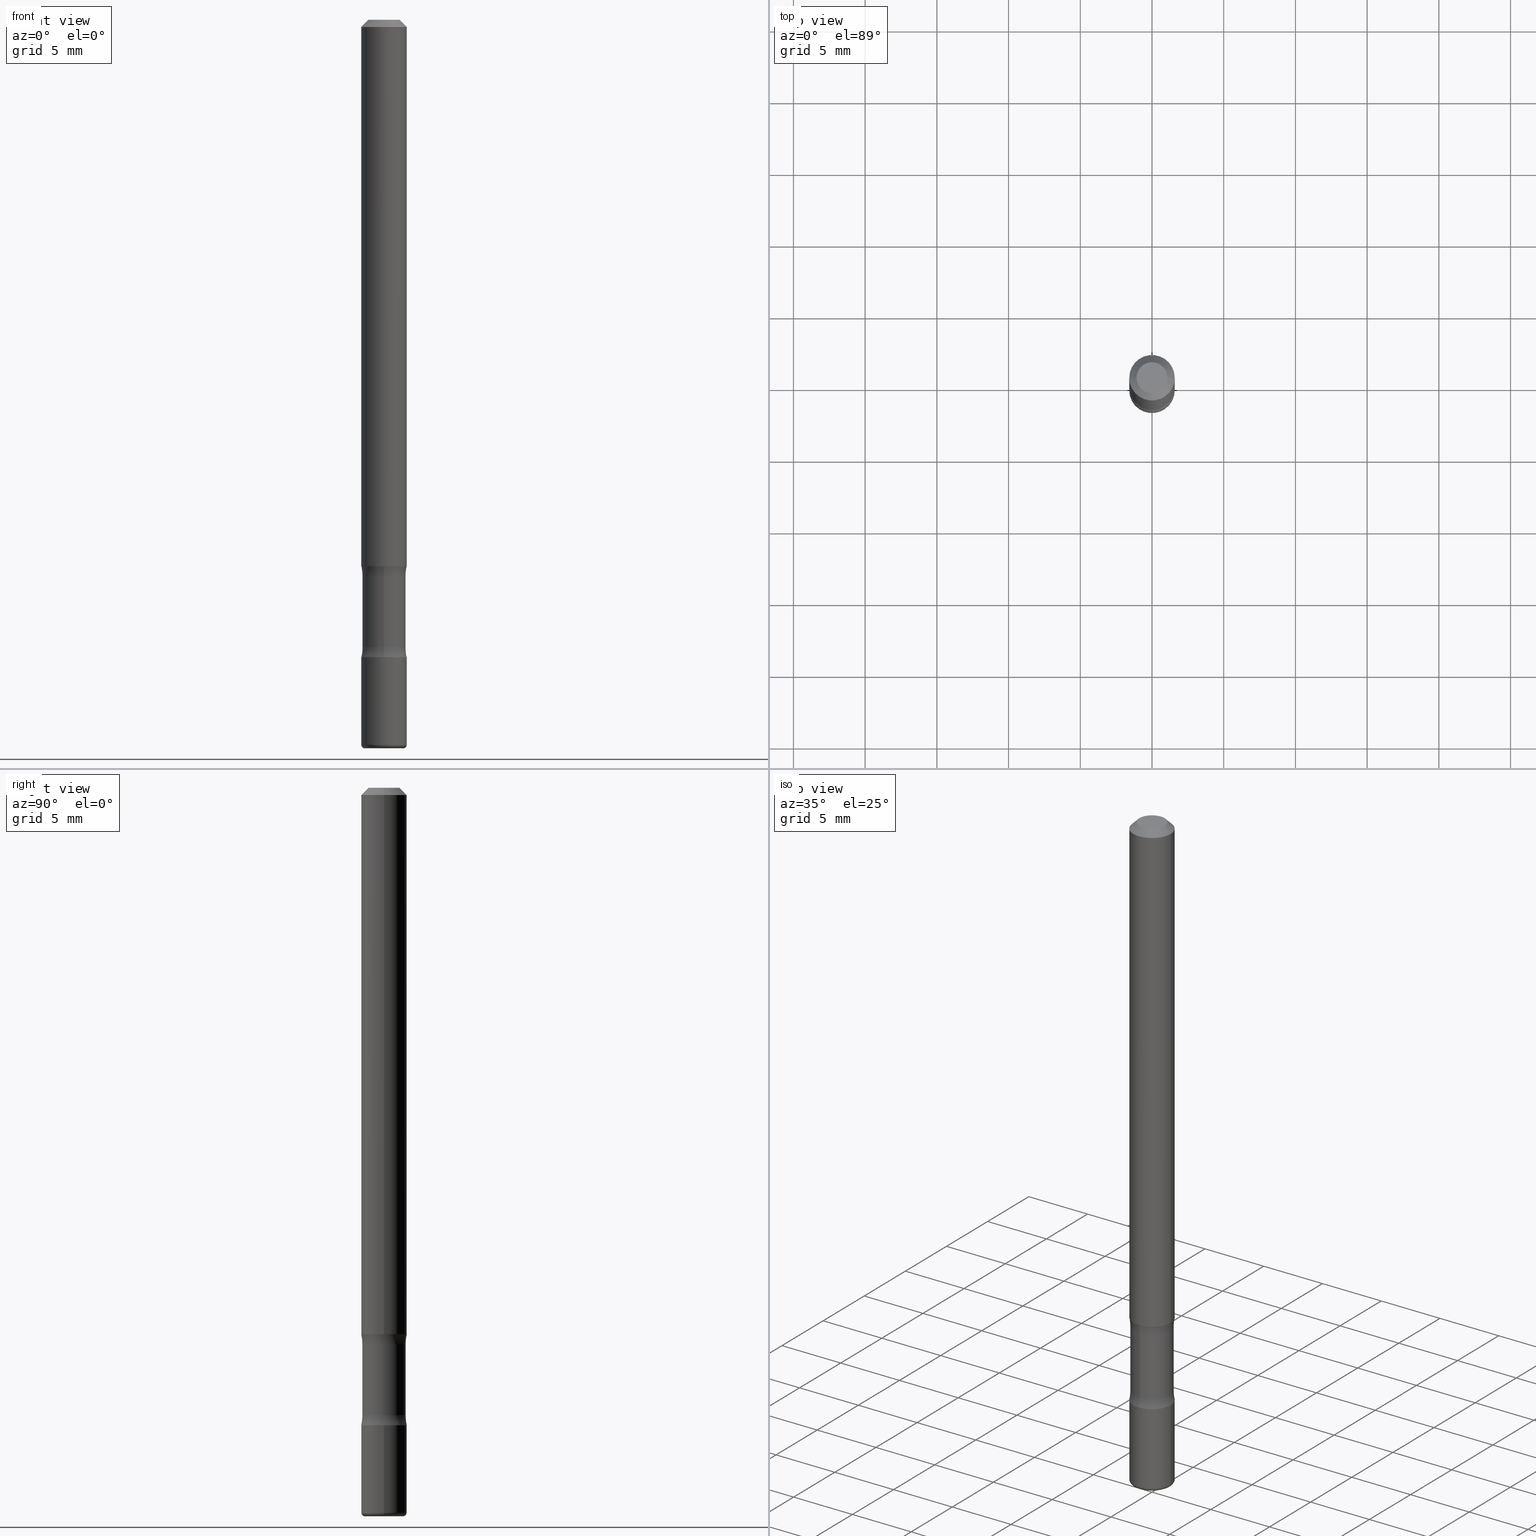
[diagram: canonical four-view strip — front | top / right | iso, engineering-drawing reading convention]
A machine part, canonical four-view strip (front | top / right | iso — engineering-drawing reading convention). The complete STEP part file that produces these views, byte-faithful:
ISO-10303-21;
HEADER;
FILE_DESCRIPTION (( 'STEP AP203' ),
    '1' );
FILE_NAME ('37992.STEP',
    '2024-03-02T02:10:36',
    ( '' ),
    ( '' ),
    'SwSTEP 2.0',
    'SolidWorks 2023',
    '' );
FILE_SCHEMA (( 'CONFIG_CONTROL_DESIGN' ));
ENDSEC;

DATA;
#1 = CIRCLE ( 'NONE', #109, 0.1250000000000000000 ) ;
#2 = AXIS2_PLACEMENT_3D ( 'NONE', #503, #286, #391 ) ;
#3 = ORIENTED_EDGE ( 'NONE', *, *, #207, .F. ) ;
#4 = ORIENTED_EDGE ( 'NONE', *, *, #240, .T. ) ;
#5 = LINE ( 'NONE', #318, #350 ) ;
#6 = DIRECTION ( 'NONE',  ( 0.7071067811865471286, -7.319954787623254468E-15, -0.7071067811865479058 ) ) ;
#7 = CARTESIAN_POINT ( 'NONE',  ( 4.279570410823986242E-29, -6.110092342975502304E-15, -1.749999999999999112 ) ) ;
#8 = AXIS2_PLACEMENT_3D ( 'NONE', #12, #394, #234 ) ;
#9 = AXIS2_PLACEMENT_3D ( 'NONE', #404, #491, #235 ) ;
#10 = ORIENTED_EDGE ( 'NONE', *, *, #79, .T. ) ;
#11 = EDGE_LOOP ( 'NONE', ( #555, #335, #31, #281 ) ) ;
#12 = CARTESIAN_POINT ( 'NONE',  ( -6.403209434462905426E-29, -2.140844110749520751E-14, -1.749999999999998890 ) ) ;
#13 = EDGE_CURVE ( 'NONE', #424, #320, #387, .T. ) ;
#14 = APPROVAL_STATUS ( 'not_yet_approved' ) ;
#15 = AXIS2_PLACEMENT_3D ( 'NONE', #510, #36, #159 ) ;
#16 = EDGE_LOOP ( 'NONE', ( #504, #509, #100, #167 ) ) ;
#17 = EDGE_LOOP ( 'NONE', ( #380, #221, #458, #182 ) ) ;
#18 = APPROVAL_ROLE ( '' ) ;
#19 = ORIENTED_EDGE ( 'NONE', *, *, #431, .T. ) ;
#20 = ORIENTED_EDGE ( 'NONE', *, *, #463, .T. ) ;
#21 = DIRECTION ( 'NONE',  ( 6.982962677686267499E-15, 1.000000000000000000, -4.370956789862777762E-15 ) ) ;
#22 = ORIENTED_EDGE ( 'NONE', *, *, #473, .T. ) ;
#23 = CYLINDRICAL_SURFACE ( 'NONE', #254, 0.05937499999999967110 ) ;
#24 = VERTEX_POINT ( 'NONE', #374 ) ;
#25 = DIRECTION ( 'NONE',  ( 6.982962677686265922E-15, 1.000000000000000000, -5.846345719468729014E-15 ) ) ;
#26 = CIRCLE ( 'NONE', #239, 0.06250000000000056899 ) ;
#27 = ADVANCED_FACE ( 'NONE', ( #287 ), #135, .F. ) ;
#28 = LOCAL_TIME ( 21, 10, 36.00000000000000000, #329 ) ;
#29 = CIRCLE ( 'NONE', #353, 0.04250000000000050265 ) ;
#30 = DIRECTION ( 'NONE',  ( 1.000000000000000000, 0.000000000000000000, 0.000000000000000000 ) ) ;
#31 = ORIENTED_EDGE ( 'NONE', *, *, #294, .T. ) ;
#32 = DIRECTION ( 'NONE',  ( 1.000000000000000000, -6.982962677686265922E-15, 4.876176775795935793E-29 ) ) ;
#33 = VERTEX_POINT ( 'NONE', #154 ) ;
#34 = ADVANCED_FACE ( 'NONE', ( #416 ), #419, .F. ) ;
#35 = PERSON_AND_ORGANIZATION_ROLE ( 'design_owner' ) ;
#36 = DIRECTION ( 'NONE',  ( -2.445468806185136597E-29, 3.491481338843145583E-15, 1.000000000000000000 ) ) ;
#37 = AXIS2_PLACEMENT_3D ( 'NONE', #117, #529, #533 ) ;
#38 = CC_DESIGN_PERSON_AND_ORGANIZATION_ASSIGNMENT ( #312, #545, ( #60 ) ) ;
#39 = AXIS2_PLACEMENT_3D ( 'NONE', #256, #482, #57 ) ;
#40 = VERTEX_POINT ( 'NONE', #116 ) ;
#41 = DIRECTION ( 'NONE',  ( -2.445468806185136597E-29, 3.491481338843145583E-15, 1.000000000000000000 ) ) ;
#42 = CARTESIAN_POINT ( 'NONE',  ( 3.668203209277701532E-29, -5.237222008264713444E-15, -1.499999999999998668 ) ) ;
#43 = APPLICATION_PROTOCOL_DEFINITION ( 'international standard', 'config_control_design', 1994, #131 ) ;
#44 = DIRECTION ( 'NONE',  ( 1.000000000000000000, -6.982962677686266711E-15, 4.870577812114026993E-29 ) ) ;
#45 = EDGE_CURVE ( 'NONE', #444, #216, #29, .T. ) ;
#46 = APPROVAL_DATE_TIME ( #469, #104 ) ;
#47 = DIRECTION ( 'NONE',  ( 1.000000000000000000, -6.982962677686270655E-15, 0.000000000000000000 ) ) ;
#48 = CIRCLE ( 'NONE', #543, 0.01000000000000085022 ) ;
#49 = CIRCLE ( 'NONE', #421, 0.06250000000000062450 ) ;
#50 = PERSON_AND_ORGANIZATION_ROLE ( 'classification_officer' ) ;
#51 = SECURITY_CLASSIFICATION_LEVEL ( 'unclassified' ) ;
#52 = DIRECTION ( 'NONE',  ( -2.445468806185136597E-29, 3.491481338843145583E-15, 1.000000000000000000 ) ) ;
#53 = CARTESIAN_POINT ( 'NONE',  ( -0.04250000000000050265, 3.316907271901009129E-16, -5.549066237130754373E-17 ) ) ;
#54 = FACE_OUTER_BOUND ( 'NONE', #17, .T. ) ;
#55 = DIRECTION ( 'NONE',  ( -2.445468806185136597E-29, 3.491481338843145583E-15, 1.000000000000000000 ) ) ;
#56 = AXIS2_PLACEMENT_3D ( 'NONE', #525, #479, #32 ) ;
#57 = DIRECTION ( 'NONE',  ( -1.000000000000000000, 6.982962677686265922E-15, 0.000000000000000000 ) ) ;
#58 = EDGE_LOOP ( 'NONE', ( #454, #243 ) ) ;
#59 = LINE ( 'NONE', #269, #149 ) ;
#60 = PRODUCT_DEFINITION ( 'UNKNOWN', '', #187, #214 ) ;
#61 = EDGE_LOOP ( 'NONE', ( #233, #342 ) ) ;
#62 = CLOSED_SHELL ( 'NONE', ( #197, #27, #258, #282, #34, #152, #176, #551 ) ) ;
#63 = CIRCLE ( 'NONE', #447, 0.06249999999999997224 ) ;
#64 = APPROVAL_PERSON_ORGANIZATION ( #224, #104, #83 ) ;
#65 = ORIENTED_EDGE ( 'NONE', *, *, #165, .F. ) ;
#66 = EDGE_CURVE ( 'NONE', #418, #95, #99, .T. ) ;
#67 = DIRECTION ( 'NONE',  ( 8.010757980930134339E-30, -5.846345719468729014E-15, -1.000000000000000000 ) ) ;
#68 = FACE_OUTER_BOUND ( 'NONE', #384, .T. ) ;
#69 = DIRECTION ( 'NONE',  ( 6.982962677686266711E-15, 1.000000000000000000, -4.601007147224070964E-15 ) ) ;
#70 = CYLINDRICAL_SURFACE ( 'NONE', #409, 0.06250000000000076328 ) ;
#71 = DIRECTION ( 'NONE',  ( -2.445468806185136597E-29, 3.491481338843145583E-15, 1.000000000000000000 ) ) ;
#72 = ORIENTED_EDGE ( 'NONE', *, *, #45, .F. ) ;
#73 = COORDINATED_UNIVERSAL_TIME_OFFSET ( 5, 0, .BEHIND. ) ;
#74 = CIRCLE ( 'NONE', #37, 0.06250000000000090206 ) ;
#75 = EDGE_LOOP ( 'NONE', ( #480, #198, #558, #489 ) ) ;
#76 = PERSON_AND_ORGANIZATION_ROLE ( 'creator' ) ;
#77 = CARTESIAN_POINT ( 'NONE',  ( -0.06250000000000056899, 3.666055405785322169E-16, -0.02000000000000013572 ) ) ;
#78 = CARTESIAN_POINT ( 'NONE',  ( 4.479839360347238409E-29, -7.571678772842681008E-15, -1.999999999999998446 ) ) ;
#79 = EDGE_CURVE ( 'NONE', #444, #195, #212, .T. ) ;
#80 = ORIENTED_EDGE ( 'NONE', *, *, #433, .T. ) ;
#81 = AXIS2_PLACEMENT_3D ( 'NONE', #7, #508, #308 ) ;
#82 = APPROVAL_PERSON_ORGANIZATION ( #385, #518, #344 ) ;
#83 = APPROVAL_ROLE ( '' ) ;
#84 = PERSON_AND_ORGANIZATION ( #211, #173 ) ;
#85 = CARTESIAN_POINT ( 'NONE',  ( 1.287483743698447629E-15, 0.1843749999999939881, -1.722224392445885766 ) ) ;
#86 = DIRECTION ( 'NONE',  ( 8.010757980930134339E-30, -5.846345719468729014E-15, -1.000000000000000000 ) ) ;
#87 = AXIS2_PLACEMENT_3D ( 'NONE', #398, #522, #222 ) ;
#88 = CC_DESIGN_SECURITY_CLASSIFICATION ( #484, ( #187 ) ) ;
#89 = DIRECTION ( 'NONE',  ( 7.105427357601001859E-15, 1.000000000000000000, -3.491481338843145583E-15 ) ) ;
#90 = CARTESIAN_POINT ( 'NONE',  ( -0.06250000000000073552, 4.440892098500678424E-16, -3.074334431409351847E-30 ) ) ;
#91 = CARTESIAN_POINT ( 'NONE',  ( -0.06250000000000056899, 3.666055405785322169E-16, -0.02000000000000013572 ) ) ;
#92 = PERSON_AND_ORGANIZATION_ROLE ( 'design_supplier' ) ;
#93 = CARTESIAN_POINT ( 'NONE',  ( 4.101551828289662394E-29, -4.810891717437951800E-15, -1.527775607554112014 ) ) ;
#94 = DIMENSIONAL_EXPONENTS ( 1.000000000000000000, 0.000000000000000000, 0.000000000000000000, 0.000000000000000000, 0.000000000000000000, 0.000000000000000000, 0.000000000000000000 ) ;
#95 = VERTEX_POINT ( 'NONE', #217 ) ;
#96 = TOROIDAL_SURFACE ( 'NONE', #506, 0.05250000000000046296, 0.01000000000000085022 ) ;
#97 = AXIS2_PLACEMENT_3D ( 'NONE', #450, #188, #280 ) ;
#98 = DIRECTION ( 'NONE',  ( 8.010757980930134339E-30, -5.846345719468729014E-15, -1.000000000000000000 ) ) ;
#99 = CIRCLE ( 'NONE', #422, 0.06250000000000062450 ) ;
#100 = ORIENTED_EDGE ( 'NONE', *, *, #210, .F. ) ;
#101 = ADVANCED_FACE ( 'NONE', ( #54 ), #174, .T. ) ;
#102 = EDGE_CURVE ( 'NONE', #195, #323, #399, .T. ) ;
#103 = DIRECTION ( 'NONE',  ( 2.438088387897960049E-29, -3.491481338843145188E-15, -1.000000000000000000 ) ) ;
#104 = APPROVAL ( #517, 'UNSPECIFIED' ) ;
#105 = EDGE_LOOP ( 'NONE', ( #377, #227, #536, #410 ) ) ;
#106 = ORIENTED_EDGE ( 'NONE', *, *, #446, .F. ) ;
#107 = DIRECTION ( 'NONE',  ( -2.445468806185136597E-29, 3.491481338843145583E-15, 1.000000000000000000 ) ) ;
#108 = APPLICATION_CONTEXT ( 'configuration controlled 3d designs of mechanical parts and assemblies' ) ;
#109 = AXIS2_PLACEMENT_3D ( 'NONE', #297, #170, #247 ) ;
#110 = ORIENTED_EDGE ( 'NONE', *, *, #459, .T. ) ;
#111 = DIRECTION ( 'NONE',  ( 8.010757980930134339E-30, -5.846345719468729014E-15, -1.000000000000000000 ) ) ;
#112 = CARTESIAN_POINT ( 'NONE',  ( 4.279570410823986242E-29, -6.110092342975502304E-15, -1.749999999999999112 ) ) ;
#113 = ORIENTED_EDGE ( 'NONE', *, *, #294, .F. ) ;
#114 = DIRECTION ( 'NONE',  ( 6.982962677686265922E-15, 1.000000000000000000, -5.846345719468729014E-15 ) ) ;
#115 = DIRECTION ( 'NONE',  ( 8.010757980930134339E-30, -5.846345719468729014E-15, -1.000000000000000000 ) ) ;
#116 = CARTESIAN_POINT ( 'NONE',  ( -4.287811248606822657E-16, -0.06250000000000677236, -1.749999999999998890 ) ) ;
#117 = CARTESIAN_POINT ( 'NONE',  ( 4.866482924308417164E-29, -6.948047864297853205E-15, -1.989999999999998215 ) ) ;
#118 = DATE_TIME_ROLE ( 'classification_date' ) ;
#119 = ORIENTED_EDGE ( 'NONE', *, *, #268, .F. ) ;
#120 = ORIENTED_EDGE ( 'NONE', *, *, #66, .F. ) ;
#121 = MANIFOLD_SOLID_BREP ( 'Body-Move/Copy2[4]', #62 ) ;
#122 = AXIS2_PLACEMENT_3D ( 'NONE', #283, #291, #511 ) ;
#123 =( GEOMETRIC_REPRESENTATION_CONTEXT ( 3 ) GLOBAL_UNCERTAINTY_ASSIGNED_CONTEXT ( ( #303 ) ) GLOBAL_UNIT_ASSIGNED_CONTEXT ( ( #341, #129, #359 ) ) REPRESENTATION_CONTEXT ( 'NONE', 'WORKASPACE' ) );
#124 = CARTESIAN_POINT ( 'NONE',  ( 0.05250000000000046296, -7.349568218264821903E-15, -1.999999999999999334 ) ) ;
#125 = EDGE_LOOP ( 'NONE', ( #157, #411 ) ) ;
#126 = CARTESIAN_POINT ( 'NONE',  ( 0.06250000000000090206, -5.673657175620112213E-15, -1.499999999999998668 ) ) ;
#127 = DIRECTION ( 'NONE',  ( -2.445468806185136597E-29, 3.491481338843145583E-15, 1.000000000000000000 ) ) ;
#128 = VECTOR ( 'NONE', #445, 39.37007874015748143 ) ;
#129 =( NAMED_UNIT ( * ) PLANE_ANGLE_UNIT ( ) SI_UNIT ( $, .RADIAN. ) );
#130 = LOCAL_TIME ( 21, 10, 36.00000000000000000, #229 ) ;
#131 = APPLICATION_CONTEXT ( 'configuration controlled 3d designs of mechanical parts and assemblies' ) ;
#132 = CARTESIAN_POINT ( 'NONE',  ( 4.257320043835055680E-29, -5.947706538645865427E-15, -1.722224392445885321 ) ) ;
#133 = DIRECTION ( 'NONE',  ( 6.860497997771531562E-15, 1.000000000000000000, 0.000000000000000000 ) ) ;
#134 = DIRECTION ( 'NONE',  ( 8.010757980930134339E-30, -5.846345719468729014E-15, -1.000000000000000000 ) ) ;
#135 = TOROIDAL_SURFACE ( 'NONE', #534, 0.1843749999999999278, 0.1249999999999999584 ) ;
#136 = AXIS2_PLACEMENT_3D ( 'NONE', #423, #352, #553 ) ;
#137 = PLANE ( 'NONE',  #8 ) ;
#138 = EDGE_CURVE ( 'NONE', #245, #33, #204, .T. ) ;
#139 = DIRECTION ( 'NONE',  ( 1.000000000000000000, -6.982962677686265922E-15, 0.000000000000000000 ) ) ;
#140 = CARTESIAN_POINT ( 'NONE',  ( -0.05250000000000046296, -6.575012928023797515E-15, -1.989999999999998215 ) ) ;
#141 = CARTESIAN_POINT ( 'NONE',  ( 4.146134089876645858E-16, 0.05937499999999210076, -1.999999999999998668 ) ) ;
#142 = DIRECTION ( 'NONE',  ( 2.445468806185136597E-29, -3.491481338843145583E-15, -1.000000000000000000 ) ) ;
#143 = EDGE_LOOP ( 'NONE', ( #461, #365, #163, #535 ) ) ;
#144 = FACE_OUTER_BOUND ( 'NONE', #546, .T. ) ;
#145 = ADVANCED_FACE ( 'NONE', ( #390 ), #70, .T. ) ;
#146 = CARTESIAN_POINT ( 'NONE',  ( -4.180615967391589820E-16, -0.05937500000000418832, -1.527775607554111792 ) ) ;
#147 = AXIS2_PLACEMENT_3D ( 'NONE', #78, #311, #520 ) ;
#148 = FACE_OUTER_BOUND ( 'NONE', #549, .T. ) ;
#149 = VECTOR ( 'NONE', #406, 39.37007874015748143 ) ;
#150 = DIRECTION ( 'NONE',  ( 6.982962677686265922E-15, 1.000000000000000000, -4.370956789862822727E-15 ) ) ;
#151 = FACE_OUTER_BOUND ( 'NONE', #238, .T. ) ;
#152 = ADVANCED_FACE ( 'NONE', ( #348 ), #137, .F. ) ;
#153 = CARTESIAN_POINT ( 'NONE',  ( 4.890937612370306439E-31, -6.982962677686338448E-17, -0.02000000000000013572 ) ) ;
#154 = CARTESIAN_POINT ( 'NONE',  ( -0.06250000000000090206, -2.209436607670712344E-15, -1.499999999999998668 ) ) ;
#155 = ORIENTED_EDGE ( 'NONE', *, *, #66, .T. ) ;
#156 = PLANE ( 'NONE',  #97 ) ;
#157 = ORIENTED_EDGE ( 'NONE', *, *, #175, .F. ) ;
#158 = CYLINDRICAL_SURFACE ( 'NONE', #122, 0.06250000000000073552 ) ;
#159 = DIRECTION ( 'NONE',  ( 1.000000000000000000, -6.982962677686261977E-15, 0.000000000000000000 ) ) ;
#160 = LENGTH_MEASURE_WITH_UNIT ( LENGTH_MEASURE( 0.02539999999999999897 ), #203 );
#161 = CARTESIAN_POINT ( 'NONE',  ( 1.357006838635785746E-45, -1.937446121494581442E-31, -5.549066237130534971E-17 ) ) ;
#162 = PLANE ( 'NONE',  #276 ) ;
#163 = ORIENTED_EDGE ( 'NONE', *, *, #268, .T. ) ;
#164 = CC_DESIGN_PERSON_AND_ORGANIZATION_ASSIGNMENT ( #84, #35, ( #328 ) ) ;
#165 = EDGE_CURVE ( 'NONE', #424, #266, #290, .T. ) ;
#166 = DIRECTION ( 'NONE',  ( 8.010757980930134339E-30, -5.846345719468729014E-15, -1.000000000000000000 ) ) ;
#167 = ORIENTED_EDGE ( 'NONE', *, *, #431, .F. ) ;
#168 = AXIS2_PLACEMENT_3D ( 'NONE', #498, #115, #69 ) ;
#169 = MECHANICAL_CONTEXT ( 'NONE', #108, 'mechanical' ) ;
#170 = DIRECTION ( 'NONE',  ( -1.000000000000000000, 6.982962677686265922E-15, -4.883557194083113462E-29 ) ) ;
#171 = DIRECTION ( 'NONE',  ( 1.000000000000000000, -6.982962677686266711E-15, 4.876176775795936353E-29 ) ) ;
#172 = AXIS2_PLACEMENT_3D ( 'NONE', #440, #52, #196 ) ;
#173 = ORGANIZATION ( 'UNSPECIFIED', 'UNSPECIFIED', '' ) ;
#174 = TOROIDAL_SURFACE ( 'NONE', #230, 0.05250000000000046296, 0.01000000000000085022 ) ;
#175 = EDGE_CURVE ( 'NONE', #332, #24, #63, .T. ) ;
#176 = ADVANCED_FACE ( 'NONE', ( #333 ), #524, .F. ) ;
#177 = ADVANCED_FACE ( 'NONE', ( #144 ), #158, .T. ) ;
#178 = DIRECTION ( 'NONE',  ( 8.010757980930134339E-30, -5.846345719468729014E-15, -1.000000000000000000 ) ) ;
#179 = CIRCLE ( 'NONE', #337, 0.06250000000000090206 ) ;
#180 = APPROVAL_PERSON_ORGANIZATION ( #538, #237, #18 ) ;
#181 = DIRECTION ( 'NONE',  ( -0.7071067811865471286, 2.468850131082252722E-15, -0.7071067811865479058 ) ) ;
#182 = ORIENTED_EDGE ( 'NONE', *, *, #358, .F. ) ;
#183 = EDGE_CURVE ( 'NONE', #33, #245, #179, .T. ) ;
#184 = FACE_OUTER_BOUND ( 'NONE', #61, .T. ) ;
#185 = AXIS2_PLACEMENT_3D ( 'NONE', #132, #166, #441 ) ;
#186 = CARTESIAN_POINT ( 'NONE',  ( 4.866482924308417164E-29, -6.948047864297853205E-15, -1.989999999999998215 ) ) ;
#187 = PRODUCT_DEFINITION_FORMATION_WITH_SPECIFIED_SOURCE ( 'ANY', '', #328, .NOT_KNOWN. ) ;
#188 = DIRECTION ( 'NONE',  ( 2.438088387897960049E-29, -3.491481338843145188E-15, -1.000000000000000000 ) ) ;
#189 = EDGE_LOOP ( 'NONE', ( #501, #4, #231, #119 ) ) ;
#190 = ORIENTED_EDGE ( 'NONE', *, *, #251, .F. ) ;
#191 = DIRECTION ( 'NONE',  ( -2.445468806185136877E-29, 3.491481338843145188E-15, 1.000000000000000000 ) ) ;
#192 = ORIENTED_EDGE ( 'NONE', *, *, #252, .F. ) ;
#193 = CIRCLE ( 'NONE', #81, 0.06250000000000062450 ) ;
#194 = ADVANCED_FACE ( 'NONE', ( #151 ), #530, .T. ) ;
#195 = VERTEX_POINT ( 'NONE', #200 ) ;
#196 = DIRECTION ( 'NONE',  ( 1.000000000000000000, -6.982962677686261977E-15, 0.000000000000000000 ) ) ;
#197 = ADVANCED_FACE ( 'NONE', ( #475 ), #360, .T. ) ;
#198 = ORIENTED_EDGE ( 'NONE', *, *, #382, .F. ) ;
#199 = ORIENTED_EDGE ( 'NONE', *, *, #473, .F. ) ;
#200 = CARTESIAN_POINT ( 'NONE',  ( 0.06250000000000056899, -4.986107516375879651E-16, -0.02000000000000013572 ) ) ;
#201 = DIRECTION ( 'NONE',  ( 1.000000000000000000, -6.982962677686271444E-15, 4.883557194083114583E-29 ) ) ;
#202 = DIRECTION ( 'NONE',  ( -1.000000000000000000, 6.982962677686265922E-15, -4.876176775795935793E-29 ) ) ;
#203 =( LENGTH_UNIT ( ) NAMED_UNIT ( * ) SI_UNIT ( $, .METRE. ) );
#204 = CIRCLE ( 'NONE', #263, 0.06250000000000090206 ) ;
#205 = VECTOR ( 'NONE', #98, 39.37007874015748143 ) ;
#206 = COORDINATED_UNIVERSAL_TIME_OFFSET ( 5, 0, .BEHIND. ) ;
#207 = EDGE_CURVE ( 'NONE', #33, #323, #355, .T. ) ;
#208 = AXIS2_PLACEMENT_3D ( 'NONE', #248, #278, #542 ) ;
#209 = DIRECTION ( 'NONE',  ( -2.445468806185136597E-29, 3.491481338843145583E-15, 1.000000000000000000 ) ) ;
#210 = EDGE_CURVE ( 'NONE', #515, #539, #483, .T. ) ;
#211 = PERSON ( 'UNSPECIFIED', 'UNSPECIFIED', 'UNSPECIFIED', ('UNSPECIFIED'), ('UNSPECIFIED'), ('UNSPECIFIED') ) ;
#212 = LINE ( 'NONE', #396, #293 ) ;
#213 = CARTESIAN_POINT ( 'NONE',  ( 4.364351673554390997E-16, 0.06249999999999455297, -1.749999999999999334 ) ) ;
#214 = DESIGN_CONTEXT ( 'detailed design', #131, 'design' ) ;
#215 = AXIS2_PLACEMENT_3D ( 'NONE', #93, #262, #400 ) ;
#216 = VERTEX_POINT ( 'NONE', #53 ) ;
#217 = CARTESIAN_POINT ( 'NONE',  ( 0.06250000000000062450, -6.546527510330897918E-15, -1.749999999999999112 ) ) ;
#218 = LOCAL_TIME ( 21, 10, 36.00000000000000000, #73 ) ;
#219 = DIRECTION ( 'NONE',  ( -2.445468806185136597E-29, 3.491481338843145583E-15, 1.000000000000000000 ) ) ;
#220 = DIRECTION ( 'NONE',  ( 1.000000000000000000, -6.982962677686271444E-15, 4.883557194083114583E-29 ) ) ;
#221 = ORIENTED_EDGE ( 'NONE', *, *, #368, .T. ) ;
#222 = DIRECTION ( 'NONE',  ( 6.982962677686265922E-15, 1.000000000000000000, -5.846345719468729014E-15 ) ) ;
#223 = CARTESIAN_POINT ( 'NONE',  ( 0.04250000000000050265, -3.950909582714408367E-16, -5.549066237130292766E-17 ) ) ;
#224 = PERSON_AND_ORGANIZATION ( #211, #173 ) ;
#225 = PRODUCT_RELATED_PRODUCT_CATEGORY ( 'detail', '', ( #328 ) ) ;
#226 = VERTEX_POINT ( 'NONE', #213 ) ;
#227 = ORIENTED_EDGE ( 'NONE', *, *, #289, .T. ) ;
#228 = AXIS2_PLACEMENT_3D ( 'NONE', #161, #464, #44 ) ;
#229 = COORDINATED_UNIVERSAL_TIME_OFFSET ( 5, 0, .BEHIND. ) ;
#230 = AXIS2_PLACEMENT_3D ( 'NONE', #552, #428, #201 ) ;
#231 = ORIENTED_EDGE ( 'NONE', *, *, #446, .T. ) ;
#232 = FACE_OUTER_BOUND ( 'NONE', #372, .T. ) ;
#233 = ORIENTED_EDGE ( 'NONE', *, *, #403, .T. ) ;
#234 = DIRECTION ( 'NONE',  ( -6.982962677686265922E-15, -1.000000000000000000, 5.846345719468729014E-15 ) ) ;
#235 = DIRECTION ( 'NONE',  ( 6.982962677686265133E-15, 1.000000000000000000, -4.601007147224025211E-15 ) ) ;
#236 = DIRECTION ( 'NONE',  ( 6.982962677686265922E-15, 1.000000000000000000, -5.846345719468729014E-15 ) ) ;
#237 = APPROVAL ( #14, 'UNSPECIFIED' ) ;
#238 = EDGE_LOOP ( 'NONE', ( #65, #540 ) ) ;
#239 = AXIS2_PLACEMENT_3D ( 'NONE', #313, #219, #139 ) ;
#240 = EDGE_CURVE ( 'NONE', #40, #539, #468, .T. ) ;
#241 = EDGE_LOOP ( 'NONE', ( #261, #375, #413, #120 ) ) ;
#242 = CC_DESIGN_DATE_AND_TIME_ASSIGNMENT ( #527, #118, ( #484 ) ) ;
#243 = ORIENTED_EDGE ( 'NONE', *, *, #183, .F. ) ;
#244 = EDGE_CURVE ( 'NONE', #323, #195, #26, .T. ) ;
#245 = VERTEX_POINT ( 'NONE', #126 ) ;
#246 = CARTESIAN_POINT ( 'NONE',  ( 0.06250000000000111022, -7.384483031653253552E-15, -1.989999999999998215 ) ) ;
#247 = DIRECTION ( 'NONE',  ( -6.982962677686265922E-15, -1.000000000000000000, 0.000000000000000000 ) ) ;
#248 = CARTESIAN_POINT ( 'NONE',  ( 0.05250000000000046296, -7.314653404876385521E-15, -1.989999999999998215 ) ) ;
#249 = AXIS2_PLACEMENT_3D ( 'NONE', #85, #334, #275 ) ;
#250 = CARTESIAN_POINT ( 'NONE',  ( 4.479839360347238409E-29, -7.571678772842681008E-15, -1.999999999999998446 ) ) ;
#251 = EDGE_CURVE ( 'NONE', #295, #309, #556, .T. ) ;
#252 = EDGE_CURVE ( 'NONE', #309, #332, #1, .T. ) ;
#253 = CONICAL_SURFACE ( 'NONE', #272, 0.06250000000000056899, 0.7853981633974477239 ) ;
#254 = AXIS2_PLACEMENT_3D ( 'NONE', #250, #505, #302 ) ;
#255 = DIRECTION ( 'NONE',  ( -1.000000000000000000, 7.105427357601001859E-15, 0.000000000000000000 ) ) ;
#256 = CARTESIAN_POINT ( 'NONE',  ( 4.890937612370306439E-31, -6.982962677686338448E-17, -0.02000000000000013572 ) ) ;
#257 = DIRECTION ( 'NONE',  ( 1.000000000000000000, -6.982962677686271444E-15, 0.000000000000000000 ) ) ;
#258 = ADVANCED_FACE ( 'NONE', ( #465 ), #343, .F. ) ;
#259 = FACE_OUTER_BOUND ( 'NONE', #105, .T. ) ;
#260 = LINE ( 'NONE', #141, #205 ) ;
#261 = ORIENTED_EDGE ( 'NONE', *, *, #433, .F. ) ;
#262 = DIRECTION ( 'NONE',  ( 8.010757980930134339E-30, -5.846345719468729014E-15, -1.000000000000000000 ) ) ;
#263 = AXIS2_PLACEMENT_3D ( 'NONE', #42, #209, #338 ) ;
#264 = AXIS2_PLACEMENT_3D ( 'NONE', #378, #339, #25 ) ;
#265 = DIRECTION ( 'NONE',  ( -2.438088387897960049E-29, 3.491481338843145188E-15, 1.000000000000000000 ) ) ;
#266 = VERTEX_POINT ( 'NONE', #346 ) ;
#267 = CC_DESIGN_DATE_AND_TIME_ASSIGNMENT ( #401, #481, ( #60 ) ) ;
#268 = EDGE_CURVE ( 'NONE', #226, #515, #493, .T. ) ;
#269 = CARTESIAN_POINT ( 'NONE',  ( 0.06250000000000073552, -4.364351673553967477E-16, 3.047610484872495604E-30 ) ) ;
#270 = EDGE_LOOP ( 'NONE', ( #72, #10, #331, #113 ) ) ;
#271 = DIRECTION ( 'NONE',  ( 1.000000000000000000, -6.982962677686266711E-15, 4.876176775795936353E-29 ) ) ;
#272 = AXIS2_PLACEMENT_3D ( 'NONE', #153, #142, #279 ) ;
#273 = CALENDAR_DATE ( 2024, 1, 3 ) ;
#274 = AXIS2_PLACEMENT_3D ( 'NONE', #516, #86, #432 ) ;
#275 = DIRECTION ( 'NONE',  ( -6.982962677686265922E-15, -1.000000000000000000, 0.000000000000000000 ) ) ;
#276 = AXIS2_PLACEMENT_3D ( 'NONE', #488, #103, #284 ) ;
#277 = VERTEX_POINT ( 'NONE', #304 ) ;
#278 = DIRECTION ( 'NONE',  ( -6.982962677686266711E-15, -1.000000000000000000, 3.491481338843145583E-15 ) ) ;
#279 = DIRECTION ( 'NONE',  ( -1.000000000000000000, 6.982962677686265922E-15, 0.000000000000000000 ) ) ;
#280 = DIRECTION ( 'NONE',  ( -1.000000000000000000, 6.982962677686265922E-15, -4.876176775795935793E-29 ) ) ;
#281 = ORIENTED_EDGE ( 'NONE', *, *, #244, .T. ) ;
#282 = ADVANCED_FACE ( 'NONE', ( #557 ), #369, .F. ) ;
#283 = CARTESIAN_POINT ( 'NONE',  ( 0.000000000000000000, 0.000000000000000000, 0.000000000000000000 ) ) ;
#284 = DIRECTION ( 'NONE',  ( -1.000000000000000000, 6.982962677686265922E-15, -4.876176775795935793E-29 ) ) ;
#285 = ORIENTED_EDGE ( 'NONE', *, *, #336, .T. ) ;
#286 = DIRECTION ( 'NONE',  ( -2.445468806185136597E-29, 3.491481338843145583E-15, 1.000000000000000000 ) ) ;
#287 = FACE_OUTER_BOUND ( 'NONE', #189, .T. ) ;
#288 = ORIENTED_EDGE ( 'NONE', *, *, #251, .T. ) ;
#289 = EDGE_CURVE ( 'NONE', #266, #277, #48, .T. ) ;
#290 = CIRCLE ( 'NONE', #172, 0.05250000000000046296 ) ;
#291 = DIRECTION ( 'NONE',  ( -2.445468806185136597E-29, 3.491481338843145583E-15, 1.000000000000000000 ) ) ;
#292 = MANIFOLD_SOLID_BREP ( 'Body-Move/Copy2[2]', #485 ) ;
#293 = VECTOR ( 'NONE', #6, 39.37007874015748143 ) ;
#294 = EDGE_CURVE ( 'NONE', #216, #323, #476, .T. ) ;
#295 = VERTEX_POINT ( 'NONE', #146 ) ;
#296 = CALENDAR_DATE ( 2024, 1, 3 ) ;
#297 = CARTESIAN_POINT ( 'NONE',  ( 1.287483743698442698E-15, 0.1843749999999946820, -1.527775607554112680 ) ) ;
#298 = SHAPE_DEFINITION_REPRESENTATION ( #367, #451 ) ;
#299 = DIRECTION ( 'NONE',  ( -2.445468806185136597E-29, 3.491481338843145583E-15, 1.000000000000000000 ) ) ;
#300 = EDGE_CURVE ( 'NONE', #295, #539, #5, .T. ) ;
#301 = CARTESIAN_POINT ( 'NONE',  ( 4.890937612370306439E-31, -6.982962677686338448E-17, -0.02000000000000013572 ) ) ;
#302 = DIRECTION ( 'NONE',  ( 6.982962677686266711E-15, 1.000000000000000000, -4.601007147224048087E-15 ) ) ;
#303 = UNCERTAINTY_MEASURE_WITH_UNIT (LENGTH_MEASURE( 1.000000000000000082E-05 ), #341, 'distance_accuracy_value', 'NONE');
#304 = CARTESIAN_POINT ( 'NONE',  ( -0.06250000000000111022, -6.503958654447783489E-15, -1.989999999999998215 ) ) ;
#305 = CONICAL_SURFACE ( 'NONE', #39, 0.06250000000000056899, 0.7853981633974477239 ) ;
#306 = CC_DESIGN_PERSON_AND_ORGANIZATION_ASSIGNMENT ( #487, #76, ( #187 ) ) ;
#307 = CALENDAR_DATE ( 2024, 1, 3 ) ;
#308 = DIRECTION ( 'NONE',  ( 6.982962677686267499E-15, 1.000000000000000000, -4.370956789862777762E-15 ) ) ;
#309 = VERTEX_POINT ( 'NONE', #478 ) ;
#310 = FACE_OUTER_BOUND ( 'NONE', #58, .T. ) ;
#311 = DIRECTION ( 'NONE',  ( 8.010757980930134339E-30, -5.846345719468729014E-15, -1.000000000000000000 ) ) ;
#312 = PERSON_AND_ORGANIZATION ( #211, #173 ) ;
#313 = CARTESIAN_POINT ( 'NONE',  ( 4.890937612370306439E-31, -6.982962677686338448E-17, -0.02000000000000013572 ) ) ;
#314 = CIRCLE ( 'NONE', #136, 0.1250000000000000000 ) ;
#315 = ADVANCED_FACE ( 'NONE', ( #259 ), #96, .T. ) ;
#316 = PLANE ( 'NONE',  #452 ) ;
#317 = ORIENTED_EDGE ( 'NONE', *, *, #347, .F. ) ;
#318 = CARTESIAN_POINT ( 'NONE',  ( -4.073420686176375718E-16, -0.05937500000000724837, -1.999999999999998002 ) ) ;
#319 = EDGE_CURVE ( 'NONE', #40, #226, #193, .T. ) ;
#320 = VERTEX_POINT ( 'NONE', #246 ) ;
#321 = CARTESIAN_POINT ( 'NONE',  ( -0.06250000000000076328, 4.440892098500680396E-16, -3.074334431409353598E-30 ) ) ;
#322 = VECTOR ( 'NONE', #191, 39.37007874015748143 ) ;
#323 = VERTEX_POINT ( 'NONE', #77 ) ;
#324 = APPROVAL_DATE_TIME ( #366, #237 ) ;
#325 = ORIENTED_EDGE ( 'NONE', *, *, #405, .T. ) ;
#326 = DIRECTION ( 'NONE',  ( 6.982962677686265922E-15, 1.000000000000000000, -4.370956789862822727E-15 ) ) ;
#327 = ADVANCED_FACE ( 'NONE', ( #148 ), #519, .T. ) ;
#328 = PRODUCT ( '37992', '37992', '', ( #169 ) ) ;
#329 = COORDINATED_UNIVERSAL_TIME_OFFSET ( 5, 0, .BEHIND. ) ;
#330 = LINE ( 'NONE', #321, #351 ) ;
#331 = ORIENTED_EDGE ( 'NONE', *, *, #102, .T. ) ;
#332 = VERTEX_POINT ( 'NONE', #550 ) ;
#333 = FACE_OUTER_BOUND ( 'NONE', #143, .T. ) ;
#334 = DIRECTION ( 'NONE',  ( -1.000000000000000000, 6.982962677686265922E-15, -4.883557194083113462E-29 ) ) ;
#335 = ORIENTED_EDGE ( 'NONE', *, *, #403, .F. ) ;
#336 = EDGE_CURVE ( 'NONE', #320, #277, #512, .T. ) ;
#337 = AXIS2_PLACEMENT_3D ( 'NONE', #386, #127, #47 ) ;
#338 = DIRECTION ( 'NONE',  ( 1.000000000000000000, -6.982962677686270655E-15, 0.000000000000000000 ) ) ;
#339 = DIRECTION ( 'NONE',  ( 8.010757980930137142E-30, -5.846345719468729014E-15, -1.000000000000000000 ) ) ;
#340 = ADVANCED_FACE ( 'NONE', ( #521 ), #253, .T. ) ;
#341 =( CONVERSION_BASED_UNIT ( 'INCH', #160 ) LENGTH_UNIT ( ) NAMED_UNIT ( #94 ) );
#342 = ORIENTED_EDGE ( 'NONE', *, *, #45, .T. ) ;
#343 = TOROIDAL_SURFACE ( 'NONE', #274, 0.1843749999999994560, 0.1250000000000000000 ) ;
#344 = APPROVAL_ROLE ( '' ) ;
#345 = CC_DESIGN_APPROVAL ( #104, ( #484 ) ) ;
#346 = CARTESIAN_POINT ( 'NONE',  ( -0.05250000000000046296, -6.556943197930007510E-15, -1.999999999999999334 ) ) ;
#347 = EDGE_CURVE ( 'NONE', #320, #95, #412, .T. ) ;
#348 = FACE_OUTER_BOUND ( 'NONE', #415, .T. ) ;
#349 = APPROVAL_STATUS ( 'not_yet_approved' ) ;
#350 = VECTOR ( 'NONE', #178, 39.37007874015748143 ) ;
#351 = VECTOR ( 'NONE', #407, 39.37007874015748143 ) ;
#352 = DIRECTION ( 'NONE',  ( 1.000000000000000000, -6.860497997771530774E-15, 4.811960108362550720E-29 ) ) ;
#353 = AXIS2_PLACEMENT_3D ( 'NONE', #457, #71, #547 ) ;
#354 = CC_DESIGN_PERSON_AND_ORGANIZATION_ASSIGNMENT ( #402, #50, ( #484 ) ) ;
#355 = LINE ( 'NONE', #90, #128 ) ;
#356 = CARTESIAN_POINT ( 'NONE',  ( 4.079301461300732393E-29, -4.648505913108318079E-15, -1.499999999999998668 ) ) ;
#357 = DIRECTION ( 'NONE',  ( -2.445468806185136597E-29, 3.491481338843145583E-15, 1.000000000000000000 ) ) ;
#358 = EDGE_CURVE ( 'NONE', #277, #320, #74, .T. ) ;
#359 =( NAMED_UNIT ( * ) SI_UNIT ( $, .STERADIAN. ) SOLID_ANGLE_UNIT ( ) );
#360 = CYLINDRICAL_SURFACE ( 'NONE', #147, 0.05937499999999967110 ) ;
#361 = CIRCLE ( 'NONE', #168, 0.05937499999999937272 ) ;
#362 = CARTESIAN_POINT ( 'NONE',  ( -1.264904318339082863E-15, -0.1843750000000058675, -1.722224392445883545 ) ) ;
#363 = CARTESIAN_POINT ( 'NONE',  ( 4.866482924308417164E-29, -6.948047864297853205E-15, -1.989999999999998215 ) ) ;
#364 = CARTESIAN_POINT ( 'NONE',  ( 4.079301461300732393E-29, -4.648505913108318079E-15, -1.499999999999998668 ) ) ;
#365 = ORIENTED_EDGE ( 'NONE', *, *, #537, .F. ) ;
#366 = DATE_AND_TIME ( #376, #28 ) ;
#367 = PRODUCT_DEFINITION_SHAPE ( 'NONE', 'NONE',  #60 ) ;
#368 = EDGE_CURVE ( 'NONE', #266, #424, #392, .T. ) ;
#369 = TOROIDAL_SURFACE ( 'NONE', #87, 0.1843749999999994560, 0.1250000000000000000 ) ;
#370 = CIRCLE ( 'NONE', #2, 0.06250000000000062450 ) ;
#371 = CARTESIAN_POINT ( 'NONE',  ( 3.668203209277701532E-29, -5.237222008264713444E-15, -1.499999999999998668 ) ) ;
#372 = EDGE_LOOP ( 'NONE', ( #285, #80, #496, #317 ) ) ;
#373 = CARTESIAN_POINT ( 'NONE',  ( 4.146134089876643393E-16, 0.05937499999999401590, -1.722224392445885544 ) ) ;
#374 = CARTESIAN_POINT ( 'NONE',  ( -4.287811248606790116E-16, -0.06250000000000452416, -1.499999999999998446 ) ) ;
#375 = ORIENTED_EDGE ( 'NONE', *, *, #358, .T. ) ;
#376 = CALENDAR_DATE ( 2024, 1, 3 ) ;
#377 = ORIENTED_EDGE ( 'NONE', *, *, #165, .T. ) ;
#378 = CARTESIAN_POINT ( 'NONE',  ( 3.668203209277701532E-29, -5.237222008264713444E-15, -1.499999999999998668 ) ) ;
#379 = CYLINDRICAL_SURFACE ( 'NONE', #462, 0.06250000000000076328 ) ;
#380 = ORIENTED_EDGE ( 'NONE', *, *, #289, .F. ) ;
#381 = CIRCLE ( 'NONE', #393, 0.06249999999999997224 ) ;
#382 = EDGE_CURVE ( 'NONE', #309, #295, #361, .T. ) ;
#383 = ORIENTED_EDGE ( 'NONE', *, *, #300, .F. ) ;
#384 = EDGE_LOOP ( 'NONE', ( #383, #288, #19, #106 ) ) ;
#385 = PERSON_AND_ORGANIZATION ( #211, #173 ) ;
#386 = CARTESIAN_POINT ( 'NONE',  ( 3.668203209277701532E-29, -5.237222008264713444E-15, -1.499999999999998668 ) ) ;
#387 = CIRCLE ( 'NONE', #208, 0.01000000000000085022 ) ;
#388 = VECTOR ( 'NONE', #181, 39.37007874015748143 ) ;
#389 = AXIS2_PLACEMENT_3D ( 'NONE', #500, #554, #30 ) ;
#390 = FACE_OUTER_BOUND ( 'NONE', #241, .T. ) ;
#391 = DIRECTION ( 'NONE',  ( 1.000000000000000000, -6.982962677686271444E-15, 0.000000000000000000 ) ) ;
#392 = CIRCLE ( 'NONE', #15, 0.05250000000000046296 ) ;
#393 = AXIS2_PLACEMENT_3D ( 'NONE', #356, #134, #326 ) ;
#394 = DIRECTION ( 'NONE',  ( -8.010757980930137142E-30, 5.846345719468729014E-15, 1.000000000000000000 ) ) ;
#395 = COORDINATED_UNIVERSAL_TIME_OFFSET ( 5, 0, .BEHIND. ) ;
#396 = CARTESIAN_POINT ( 'NONE',  ( 0.06250000000000056899, -4.986107516375879651E-16, -0.02000000000000013572 ) ) ;
#397 = DIRECTION ( 'NONE',  ( 1.000000000000000000, -6.860497997771530774E-15, 4.811960108362550720E-29 ) ) ;
#398 = CARTESIAN_POINT ( 'NONE',  ( 4.117655442741518235E-29, -4.787830424982076550E-15, -1.527775607554111570 ) ) ;
#399 = CIRCLE ( 'NONE', #531, 0.06250000000000056899 ) ;
#400 = DIRECTION ( 'NONE',  ( 6.982962677686266711E-15, 1.000000000000000000, -4.601007147224070964E-15 ) ) ;
#401 = DATE_AND_TIME ( #541, #130 ) ;
#402 = PERSON_AND_ORGANIZATION ( #211, #173 ) ;
#403 = EDGE_CURVE ( 'NONE', #216, #444, #472, .T. ) ;
#404 = CARTESIAN_POINT ( 'NONE',  ( 4.257320043835055680E-29, -5.947706538645865427E-15, -1.722224392445885321 ) ) ;
#405 = EDGE_CURVE ( 'NONE', #295, #24, #314, .T. ) ;
#406 = DIRECTION ( 'NONE',  ( -2.445468806185136877E-29, 3.491481338843145188E-15, 1.000000000000000000 ) ) ;
#407 = DIRECTION ( 'NONE',  ( -2.445468806185136877E-29, 3.491481338843145188E-15, 1.000000000000000000 ) ) ;
#408 = EDGE_LOOP ( 'NONE', ( #110, #155 ) ) ;
#409 = AXIS2_PLACEMENT_3D ( 'NONE', #560, #499, #171 ) ;
#410 = ORIENTED_EDGE ( 'NONE', *, *, #13, .F. ) ;
#411 = ORIENTED_EDGE ( 'NONE', *, *, #463, .F. ) ;
#412 = LINE ( 'NONE', #417, #322 ) ;
#413 = ORIENTED_EDGE ( 'NONE', *, *, #347, .T. ) ;
#414 = DIRECTION ( 'NONE',  ( 8.010757980930134339E-30, -5.846345719468729014E-15, -1.000000000000000000 ) ) ;
#415 = EDGE_LOOP ( 'NONE', ( #426, #513 ) ) ;
#416 = FACE_OUTER_BOUND ( 'NONE', #125, .T. ) ;
#417 = CARTESIAN_POINT ( 'NONE',  ( 0.06250000000000076328, -4.364351673553969942E-16, 3.047610484872497355E-30 ) ) ;
#418 = VERTEX_POINT ( 'NONE', #437 ) ;
#419 = PLANE ( 'NONE',  #264 ) ;
#420 = ORIENTED_EDGE ( 'NONE', *, *, #102, .F. ) ;
#421 = AXIS2_PLACEMENT_3D ( 'NONE', #112, #414, #21 ) ;
#422 = AXIS2_PLACEMENT_3D ( 'NONE', #470, #357, #257 ) ;
#423 = CARTESIAN_POINT ( 'NONE',  ( -1.264904318339080891E-15, -0.1843750000000042299, -1.527775607554110460 ) ) ;
#424 = VERTEX_POINT ( 'NONE', #124 ) ;
#425 = PERSON_AND_ORGANIZATION ( #211, #173 ) ;
#426 = ORIENTED_EDGE ( 'NONE', *, *, #537, .T. ) ;
#427 = ADVANCED_FACE ( 'NONE', ( #310 ), #316, .F. ) ;
#428 = DIRECTION ( 'NONE',  ( -2.445468806185136597E-29, 3.491481338843145583E-15, 1.000000000000000000 ) ) ;
#429 = AXIS2_PLACEMENT_3D ( 'NONE', #455, #67, #114 ) ;
#430 = APPROVAL_DATE_TIME ( #514, #518 ) ;
#431 = EDGE_CURVE ( 'NONE', #309, #515, #260, .T. ) ;
#432 = DIRECTION ( 'NONE',  ( 6.982962677686265922E-15, 1.000000000000000000, -5.846345719468729014E-15 ) ) ;
#433 = EDGE_CURVE ( 'NONE', #277, #418, #330, .T. ) ;
#434 = DIRECTION ( 'NONE',  ( 2.438088387897960049E-29, -3.491481338843145188E-15, -1.000000000000000000 ) ) ;
#435 = AXIS2_PLACEMENT_3D ( 'NONE', #362, #397, #133 ) ;
#436 = CC_DESIGN_APPROVAL ( #518, ( #60 ) ) ;
#437 = CARTESIAN_POINT ( 'NONE',  ( -0.06250000000000062450, -6.084980893786609222E-15, -1.749999999999999112 ) ) ;
#438 = CLOSED_SHELL ( 'NONE', ( #528, #315, #194, #101, #145, #471 ) ) ;
#439 = ADVANCED_FACE ( 'NONE', ( #442 ), #305, .T. ) ;
#440 = CARTESIAN_POINT ( 'NONE',  ( 4.890937612370272073E-29, -6.982962677686288799E-15, -1.999999999999999334 ) ) ;
#441 = DIRECTION ( 'NONE',  ( 6.982962677686265133E-15, 1.000000000000000000, -4.601007147224025211E-15 ) ) ;
#442 = FACE_OUTER_BOUND ( 'NONE', #11, .T. ) ;
#443 = CC_DESIGN_PERSON_AND_ORGANIZATION_ASSIGNMENT ( #425, #92, ( #187 ) ) ;
#444 = VERTEX_POINT ( 'NONE', #223 ) ;
#445 = DIRECTION ( 'NONE',  ( -2.445468806185136877E-29, 3.491481338843145188E-15, 1.000000000000000000 ) ) ;
#446 = EDGE_CURVE ( 'NONE', #539, #515, #532, .T. ) ;
#447 = AXIS2_PLACEMENT_3D ( 'NONE', #364, #497, #150 ) ;
#448 = CC_DESIGN_APPROVAL ( #237, ( #187 ) ) ;
#449 = FACE_OUTER_BOUND ( 'NONE', #408, .T. ) ;
#450 = CARTESIAN_POINT ( 'NONE',  ( 2.967759138016698062E-16, 0.04250000000000050265, -1.761332880864881203E-16 ) ) ;
#451 = ADVANCED_BREP_SHAPE_REPRESENTATION ( '37992', ( #477, #292, #121, #389 ), #123 ) ;
#452 = AXIS2_PLACEMENT_3D ( 'NONE', #371, #265, #526 ) ;
#453 = EDGE_LOOP ( 'NONE', ( #190, #325, #20, #192 ) ) ;
#454 = ORIENTED_EDGE ( 'NONE', *, *, #138, .F. ) ;
#455 = CARTESIAN_POINT ( 'NONE',  ( 4.259337010429733699E-29, -5.944818127683673811E-15, -1.722224392445884655 ) ) ;
#456 = DIRECTION ( 'NONE',  ( 1.000000000000000000, -6.982962677686265922E-15, 0.000000000000000000 ) ) ;
#457 = CARTESIAN_POINT ( 'NONE',  ( 1.357006838635785746E-45, -1.937446121494581442E-31, -5.549066237130534971E-17 ) ) ;
#458 = ORIENTED_EDGE ( 'NONE', *, *, #13, .T. ) ;
#459 = EDGE_CURVE ( 'NONE', #95, #418, #370, .T. ) ;
#460 = AXIS2_PLACEMENT_3D ( 'NONE', #186, #41, #559 ) ;
#461 = ORIENTED_EDGE ( 'NONE', *, *, #240, .F. ) ;
#462 = AXIS2_PLACEMENT_3D ( 'NONE', #490, #107, #271 ) ;
#463 = EDGE_CURVE ( 'NONE', #24, #332, #381, .T. ) ;
#464 = DIRECTION ( 'NONE',  ( -2.445468806185136597E-29, 3.491481338843145583E-15, 1.000000000000000000 ) ) ;
#465 = FACE_OUTER_BOUND ( 'NONE', #453, .T. ) ;
#466 = ORIENTED_EDGE ( 'NONE', *, *, #207, .T. ) ;
#467 = ORIENTED_EDGE ( 'NONE', *, *, #244, .F. ) ;
#468 = CIRCLE ( 'NONE', #435, 0.1249999999999999584 ) ;
#469 = DATE_AND_TIME ( #307, #544 ) ;
#470 = CARTESIAN_POINT ( 'NONE',  ( 4.279570410823987363E-29, -6.110092342975501516E-15, -1.749999999999999112 ) ) ;
#471 = ADVANCED_FACE ( 'NONE', ( #449 ), #162, .F. ) ;
#472 = CIRCLE ( 'NONE', #228, 0.04250000000000050265 ) ;
#473 = EDGE_CURVE ( 'NONE', #245, #195, #59, .T. ) ;
#474 = LOCAL_TIME ( 21, 10, 36.00000000000000000, #395 ) ;
#475 = FACE_OUTER_BOUND ( 'NONE', #16, .T. ) ;
#476 = LINE ( 'NONE', #91, #388 ) ;
#477 = MANIFOLD_SOLID_BREP ( 'Body-Move/Copy2[1]', #438 ) ;
#478 = CARTESIAN_POINT ( 'NONE',  ( 4.146134089876587187E-16, 0.05937499999999455713, -1.527775607554112458 ) ) ;
#479 = DIRECTION ( 'NONE',  ( -2.445468806185136597E-29, 3.491481338843145583E-15, 1.000000000000000000 ) ) ;
#480 = ORIENTED_EDGE ( 'NONE', *, *, #405, .F. ) ;
#481 = DATE_TIME_ROLE ( 'creation_date' ) ;
#482 = DIRECTION ( 'NONE',  ( 2.445468806185136597E-29, -3.491481338843145583E-15, -1.000000000000000000 ) ) ;
#483 = CIRCLE ( 'NONE', #185, 0.05937499999999996253 ) ;
#484 = SECURITY_CLASSIFICATION ( '', '', #51 ) ;
#485 = CLOSED_SHELL ( 'NONE', ( #177, #340, #439, #502, #427, #327 ) ) ;
#486 = ORIENTED_EDGE ( 'NONE', *, *, #183, .T. ) ;
#487 = PERSON_AND_ORGANIZATION ( #211, #173 ) ;
#488 = CARTESIAN_POINT ( 'NONE',  ( -6.403209434462905426E-29, -2.140844110749520751E-14, -1.749999999999998890 ) ) ;
#489 = ORIENTED_EDGE ( 'NONE', *, *, #175, .T. ) ;
#490 = CARTESIAN_POINT ( 'NONE',  ( 0.000000000000000000, 0.000000000000000000, 0.000000000000000000 ) ) ;
#491 = DIRECTION ( 'NONE',  ( 8.010757980930134339E-30, -5.846345719468729014E-15, -1.000000000000000000 ) ) ;
#492 = CARTESIAN_POINT ( 'NONE',  ( 4.259337010429733699E-29, -5.944818127683673811E-15, -1.722224392445884655 ) ) ;
#493 = CIRCLE ( 'NONE', #249, 0.1249999999999999584 ) ;
#494 = CARTESIAN_POINT ( 'NONE',  ( -2.417785108228764368E-28, -4.861112258114085426E-14, -1.999999999999998890 ) ) ;
#495 = CARTESIAN_POINT ( 'NONE',  ( -4.180615967391622360E-16, -0.05937500000000592304, -1.722224392445884877 ) ) ;
#496 = ORIENTED_EDGE ( 'NONE', *, *, #459, .F. ) ;
#497 = DIRECTION ( 'NONE',  ( 8.010757980930134339E-30, -5.846345719468729014E-15, -1.000000000000000000 ) ) ;
#498 = CARTESIAN_POINT ( 'NONE',  ( 4.101551828289662394E-29, -4.810891717437951800E-15, -1.527775607554112014 ) ) ;
#499 = DIRECTION ( 'NONE',  ( -2.445468806185136597E-29, 3.491481338843145583E-15, 1.000000000000000000 ) ) ;
#500 = CARTESIAN_POINT ( 'NONE',  ( 0.000000000000000000, 0.000000000000000000, 0.000000000000000000 ) ) ;
#501 = ORIENTED_EDGE ( 'NONE', *, *, #319, .F. ) ;
#502 = ADVANCED_FACE ( 'NONE', ( #184 ), #156, .F. ) ;
#503 = CARTESIAN_POINT ( 'NONE',  ( 4.279570410823987363E-29, -6.110092342975501516E-15, -1.749999999999999112 ) ) ;
#504 = ORIENTED_EDGE ( 'NONE', *, *, #382, .T. ) ;
#505 = DIRECTION ( 'NONE',  ( 8.010757980930134339E-30, -5.846345719468729014E-15, -1.000000000000000000 ) ) ;
#506 = AXIS2_PLACEMENT_3D ( 'NONE', #363, #55, #220 ) ;
#507 = ORIENTED_EDGE ( 'NONE', *, *, #138, .T. ) ;
#508 = DIRECTION ( 'NONE',  ( 8.010757980930134339E-30, -5.846345719468729014E-15, -1.000000000000000000 ) ) ;
#509 = ORIENTED_EDGE ( 'NONE', *, *, #300, .T. ) ;
#510 = CARTESIAN_POINT ( 'NONE',  ( 4.890937612370272073E-29, -6.982962677686288799E-15, -1.999999999999999334 ) ) ;
#511 = DIRECTION ( 'NONE',  ( 1.000000000000000000, -6.982962677686265922E-15, 4.876176775795935793E-29 ) ) ;
#512 = CIRCLE ( 'NONE', #460, 0.06250000000000090206 ) ;
#513 = ORIENTED_EDGE ( 'NONE', *, *, #319, .T. ) ;
#514 = DATE_AND_TIME ( #296, #218 ) ;
#515 = VERTEX_POINT ( 'NONE', #373 ) ;
#516 = CARTESIAN_POINT ( 'NONE',  ( 4.117655442741518235E-29, -4.787830424982076550E-15, -1.527775607554111570 ) ) ;
#517 = APPROVAL_STATUS ( 'not_yet_approved' ) ;
#518 = APPROVAL ( #349, 'UNSPECIFIED' ) ;
#519 = CYLINDRICAL_SURFACE ( 'NONE', #56, 0.06250000000000073552 ) ;
#520 = DIRECTION ( 'NONE',  ( 6.982962677686266711E-15, 1.000000000000000000, -4.601007147224048087E-15 ) ) ;
#521 = FACE_OUTER_BOUND ( 'NONE', #270, .T. ) ;
#522 = DIRECTION ( 'NONE',  ( 8.010757980930134339E-30, -5.846345719468729014E-15, -1.000000000000000000 ) ) ;
#523 = AXIS2_PLACEMENT_3D ( 'NONE', #494, #434, #202 ) ;
#524 = TOROIDAL_SURFACE ( 'NONE', #429, 0.1843749999999999278, 0.1249999999999999584 ) ;
#525 = CARTESIAN_POINT ( 'NONE',  ( 0.000000000000000000, 0.000000000000000000, 0.000000000000000000 ) ) ;
#526 = DIRECTION ( 'NONE',  ( 1.000000000000000000, -6.982962677686265922E-15, 4.876176775795935793E-29 ) ) ;
#527 = DATE_AND_TIME ( #273, #474 ) ;
#528 = ADVANCED_FACE ( 'NONE', ( #232 ), #379, .T. ) ;
#529 = DIRECTION ( 'NONE',  ( -2.445468806185136597E-29, 3.491481338843145583E-15, 1.000000000000000000 ) ) ;
#530 = PLANE ( 'NONE',  #523 ) ;
#531 = AXIS2_PLACEMENT_3D ( 'NONE', #301, #299, #456 ) ;
#532 = CIRCLE ( 'NONE', #9, 0.05937499999999996253 ) ;
#533 = DIRECTION ( 'NONE',  ( 1.000000000000000000, -6.982962677686270655E-15, 0.000000000000000000 ) ) ;
#534 = AXIS2_PLACEMENT_3D ( 'NONE', #492, #111, #236 ) ;
#535 = ORIENTED_EDGE ( 'NONE', *, *, #210, .T. ) ;
#536 = ORIENTED_EDGE ( 'NONE', *, *, #336, .F. ) ;
#537 = EDGE_CURVE ( 'NONE', #226, #40, #49, .T. ) ;
#538 = PERSON_AND_ORGANIZATION ( #211, #173 ) ;
#539 = VERTEX_POINT ( 'NONE', #495 ) ;
#540 = ORIENTED_EDGE ( 'NONE', *, *, #368, .F. ) ;
#541 = CALENDAR_DATE ( 2024, 1, 3 ) ;
#542 = DIRECTION ( 'NONE',  ( 1.000000000000000000, -6.982962677686224112E-15, 0.000000000000000000 ) ) ;
#543 = AXIS2_PLACEMENT_3D ( 'NONE', #140, #89, #255 ) ;
#544 = LOCAL_TIME ( 21, 10, 36.00000000000000000, #206 ) ;
#545 = PERSON_AND_ORGANIZATION_ROLE ( 'creator' ) ;
#546 = EDGE_LOOP ( 'NONE', ( #507, #466, #420, #199 ) ) ;
#547 = DIRECTION ( 'NONE',  ( 1.000000000000000000, -6.982962677686266711E-15, 4.870577812114026993E-29 ) ) ;
#548 = APPLICATION_PROTOCOL_DEFINITION ( 'international standard', 'config_control_design', 1994, #108 ) ;
#549 = EDGE_LOOP ( 'NONE', ( #3, #486, #22, #467 ) ) ;
#550 = CARTESIAN_POINT ( 'NONE',  ( 4.364351673554319013E-16, 0.06249999999999526074, -1.499999999999999112 ) ) ;
#551 = ADVANCED_FACE ( 'NONE', ( #68 ), #23, .T. ) ;
#552 = CARTESIAN_POINT ( 'NONE',  ( 4.866482924308417164E-29, -6.948047864297853205E-15, -1.989999999999998215 ) ) ;
#553 = DIRECTION ( 'NONE',  ( 6.860497997771530774E-15, 1.000000000000000000, 0.000000000000000000 ) ) ;
#554 = DIRECTION ( 'NONE',  ( 0.000000000000000000, 0.000000000000000000, 1.000000000000000000 ) ) ;
#555 = ORIENTED_EDGE ( 'NONE', *, *, #79, .F. ) ;
#556 = CIRCLE ( 'NONE', #215, 0.05937499999999937272 ) ;
#557 = FACE_OUTER_BOUND ( 'NONE', #75, .T. ) ;
#558 = ORIENTED_EDGE ( 'NONE', *, *, #252, .T. ) ;
#559 = DIRECTION ( 'NONE',  ( 1.000000000000000000, -6.982962677686270655E-15, 0.000000000000000000 ) ) ;
#560 = CARTESIAN_POINT ( 'NONE',  ( 0.000000000000000000, 0.000000000000000000, 0.000000000000000000 ) ) ;
ENDSEC;
END-ISO-10303-21;
